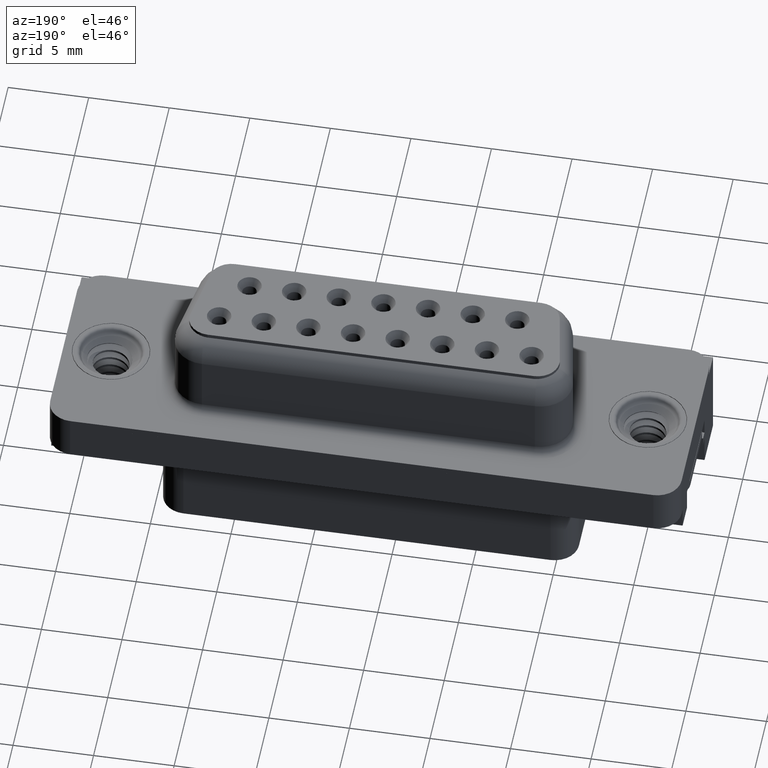
[diagram: clean part render]
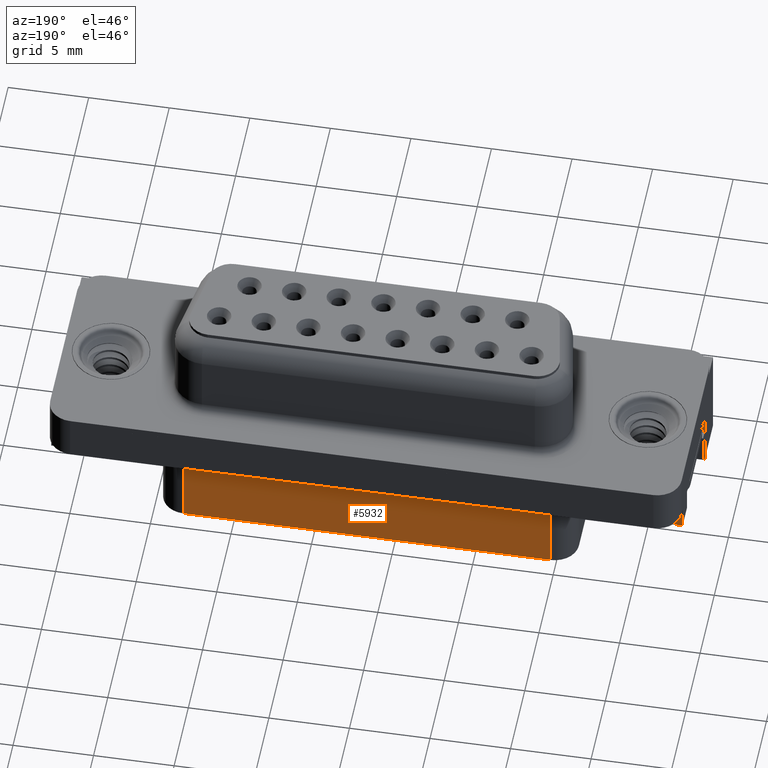
[diagram: same view with one face highlighted and labeled with its STEP entity id]
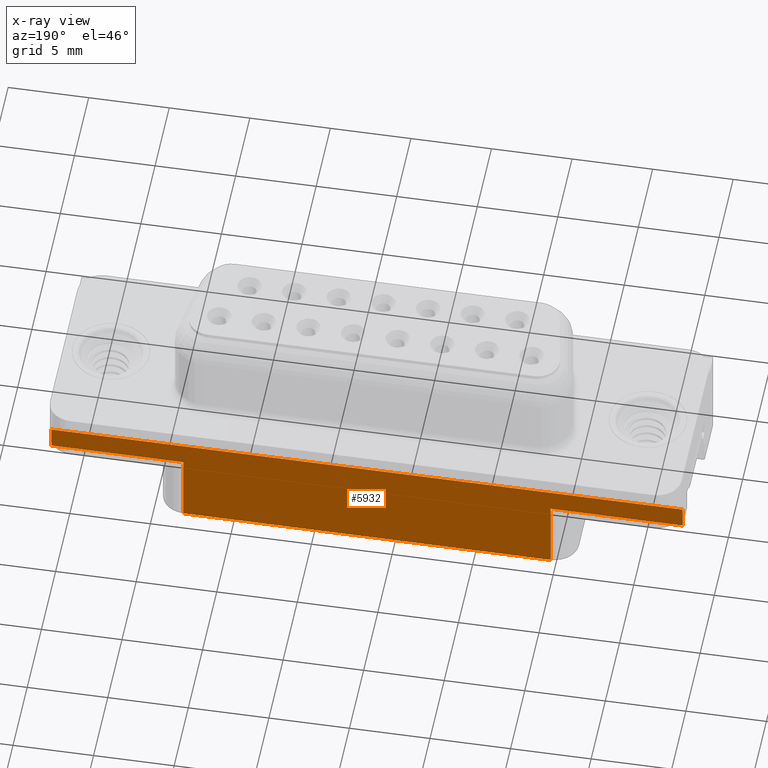
[diagram: x-ray of the same camera — body ghosted, the highlighted face saturated]
A machine part, auxiliary view. The second image highlights one B-rep face of the part: STEP entity #5932.
The next image is the same camera in x-ray: the body ghosted, the highlighted face saturated — about 0% of this face is hidden behind the body in this view.
In plain terms, the highlighted planar face has unit normal (0, -1, 0).
Its self-contained STEP definition (entity closure, byte-faithful):
#176 = EDGE_CURVE ( 'NONE', #17607, #7397, #11017, .T. ) ;
#256 = VERTEX_POINT ( 'NONE', #18546 ) ;
#382 = VECTOR ( 'NONE', #11120, 1000.000000000000000 ) ;
#941 = LINE ( 'NONE', #3694, #11580 ) ;
#2133 = DIRECTION ( 'NONE',  ( 0.0000000000000000000, -0.0000000000000000000, -1.000000000000000000 ) ) ;
#2721 = ORIENTED_EDGE ( 'NONE', *, *, #21011, .T. ) ;
#2979 = CARTESIAN_POINT ( 'NONE',  ( -2.934999999999990300, 4.424999999999998900, -2.500000000000000000 ) ) ;
#3069 = VERTEX_POINT ( 'NONE', #6759 ) ;
#3184 = CARTESIAN_POINT ( 'NONE',  ( 36.25500000000001000, 4.424999999999998900, -3.899999999999999900 ) ) ;
#3447 = ORIENTED_EDGE ( 'NONE', *, *, #176, .F. ) ;
#3565 = VERTEX_POINT ( 'NONE', #14991 ) ;
#3694 = CARTESIAN_POINT ( 'NONE',  ( 5.265000000000010300, 4.424999999999998900, -8.400000000000000400 ) ) ;
#4023 = DIRECTION ( 'NONE',  ( 1.000000000000000000, 0.0000000000000000000, 0.0000000000000000000 ) ) ;
#4137 = LINE ( 'NONE', #2979, #18866 ) ;
#5011 = DIRECTION ( 'NONE',  ( 1.000000000000000000, 0.0000000000000000000, 0.0000000000000000000 ) ) ;
#5188 = LINE ( 'NONE', #22316, #25822 ) ;
#5199 = EDGE_CURVE ( 'NONE', #3069, #24556, #5806, .T. ) ;
#5806 = LINE ( 'NONE', #17230, #17109 ) ;
#5928 = ORIENTED_EDGE ( 'NONE', *, *, #24823, .F. ) ;
#5932 = ADVANCED_FACE ( 'NONE', ( #17993 ), #10010, .F. ) ;
#6399 = CARTESIAN_POINT ( 'NONE',  ( -2.934999999999990300, 4.424999999999998900, -3.899999999999999900 ) ) ;
#6621 = ORIENTED_EDGE ( 'NONE', *, *, #13688, .F. ) ;
#6759 = CARTESIAN_POINT ( 'NONE',  ( 5.265000000000010300, 4.424999999999998900, -8.400000000000000400 ) ) ;
#6821 = VERTEX_POINT ( 'NONE', #8844 ) ;
#7053 = EDGE_LOOP ( 'NONE', ( #2721, #5928, #3447, #6621, #15906, #12960, #13617, #19166 ) ) ;
#7073 = LINE ( 'NONE', #13995, #17724 ) ;
#7397 = VERTEX_POINT ( 'NONE', #3184 ) ;
#7749 = CARTESIAN_POINT ( 'NONE',  ( 36.25500000000001000, 4.424999999999998900, -3.899999999999999900 ) ) ;
#8115 = CARTESIAN_POINT ( 'NONE',  ( -2.934999999999990300, 4.424999999999998900, -3.899999999999999900 ) ) ;
#8579 = CARTESIAN_POINT ( 'NONE',  ( -2.934999999999990300, 4.424999999999998900, -3.899999999999999900 ) ) ;
#8844 = CARTESIAN_POINT ( 'NONE',  ( -2.934999999999990300, 4.424999999999998900, -3.899999999999999900 ) ) ;
#10010 = PLANE ( 'NONE',  #19366 ) ;
#10314 = DIRECTION ( 'NONE',  ( -0.0000000000000000000, -0.0000000000000000000, 1.000000000000000000 ) ) ;
#11017 = LINE ( 'NONE', #8579, #382 ) ;
#11120 = DIRECTION ( 'NONE',  ( 1.000000000000000000, 0.0000000000000000000, 0.0000000000000000000 ) ) ;
#11580 = VECTOR ( 'NONE', #17718, 1000.000000000000000 ) ;
#12054 = CARTESIAN_POINT ( 'NONE',  ( 5.265000000000011200, 4.424999999999998900, -3.899999999999999900 ) ) ;
#12960 = ORIENTED_EDGE ( 'NONE', *, *, #5199, .T. ) ;
#13570 = EDGE_CURVE ( 'NONE', #6821, #24556, #7073, .T. ) ;
#13617 = ORIENTED_EDGE ( 'NONE', *, *, #13570, .F. ) ;
#13688 = EDGE_CURVE ( 'NONE', #3565, #17607, #5188, .T. ) ;
#13754 = DIRECTION ( 'NONE',  ( -0.0000000000000000000, -0.0000000000000000000, 1.000000000000000000 ) ) ;
#13995 = CARTESIAN_POINT ( 'NONE',  ( -2.934999999999990300, 4.424999999999998900, -3.899999999999999900 ) ) ;
#14132 = DIRECTION ( 'NONE',  ( 0.0000000000000000000, -1.000000000000000000, 0.0000000000000000000 ) ) ;
#14326 = LINE ( 'NONE', #6399, #19025 ) ;
#14991 = CARTESIAN_POINT ( 'NONE',  ( 28.05500000000000300, 4.424999999999999800, -8.400000000000000400 ) ) ;
#15316 = VECTOR ( 'NONE', #13754, 1000.000000000000000 ) ;
#15906 = ORIENTED_EDGE ( 'NONE', *, *, #23770, .F. ) ;
#15994 = VERTEX_POINT ( 'NONE', #21085 ) ;
#17061 = EDGE_CURVE ( 'NONE', #6821, #15994, #14326, .T. ) ;
#17109 = VECTOR ( 'NONE', #17416, 1000.000000000000000 ) ;
#17230 = CARTESIAN_POINT ( 'NONE',  ( 5.265000000000010300, 4.424999999999998900, -8.400000000000000400 ) ) ;
#17416 = DIRECTION ( 'NONE',  ( -0.0000000000000000000, -0.0000000000000000000, 1.000000000000000000 ) ) ;
#17607 = VERTEX_POINT ( 'NONE', #25210 ) ;
#17718 = DIRECTION ( 'NONE',  ( 1.000000000000000000, 0.0000000000000000000, 0.0000000000000000000 ) ) ;
#17724 = VECTOR ( 'NONE', #4023, 1000.000000000000000 ) ;
#17993 = FACE_OUTER_BOUND ( 'NONE', #7053, .T. ) ;
#18546 = CARTESIAN_POINT ( 'NONE',  ( 36.25500000000001000, 4.424999999999998900, -2.500000000000000000 ) ) ;
#18866 = VECTOR ( 'NONE', #5011, 1000.000000000000000 ) ;
#19025 = VECTOR ( 'NONE', #22431, 1000.000000000000000 ) ;
#19166 = ORIENTED_EDGE ( 'NONE', *, *, #17061, .T. ) ;
#19366 = AXIS2_PLACEMENT_3D ( 'NONE', #8115, #14132, #2133 ) ;
#21011 = EDGE_CURVE ( 'NONE', #15994, #256, #4137, .T. ) ;
#21085 = CARTESIAN_POINT ( 'NONE',  ( -2.934999999999993400, 4.424999999999998900, -2.500000000000000000 ) ) ;
#22316 = CARTESIAN_POINT ( 'NONE',  ( 28.05500000000000300, 4.424999999999999800, -8.400000000000000400 ) ) ;
#22431 = DIRECTION ( 'NONE',  ( -0.0000000000000000000, -0.0000000000000000000, 1.000000000000000000 ) ) ;
#23770 = EDGE_CURVE ( 'NONE', #3069, #3565, #941, .T. ) ;
#24556 = VERTEX_POINT ( 'NONE', #12054 ) ;
#24823 = EDGE_CURVE ( 'NONE', #7397, #256, #25925, .T. ) ;
#25210 = CARTESIAN_POINT ( 'NONE',  ( 28.05500000000000300, 4.424999999999998900, -3.899999999999999900 ) ) ;
#25822 = VECTOR ( 'NONE', #10314, 1000.000000000000000 ) ;
#25925 = LINE ( 'NONE', #7749, #15316 ) ;